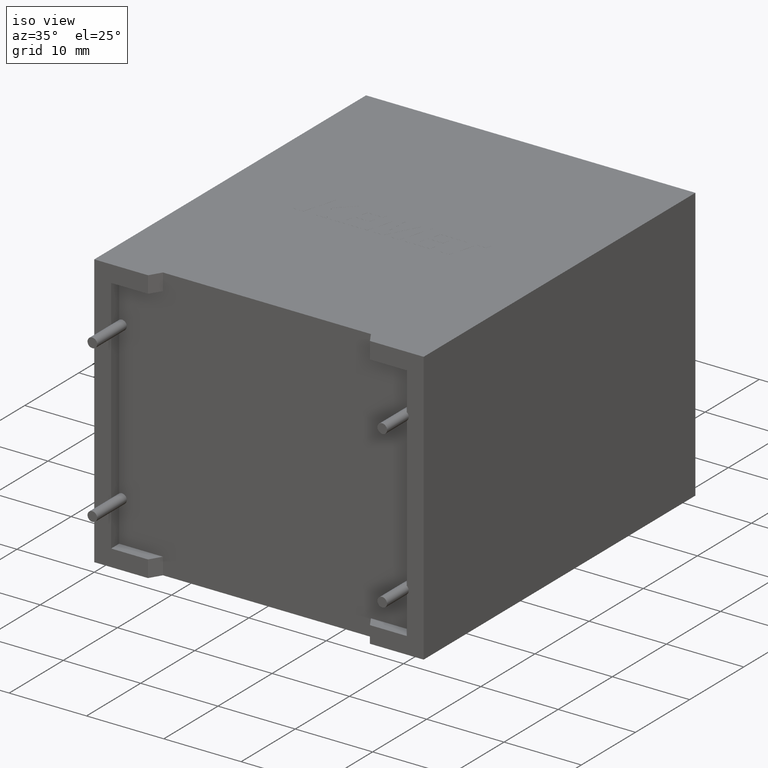
[diagram: clean part render]
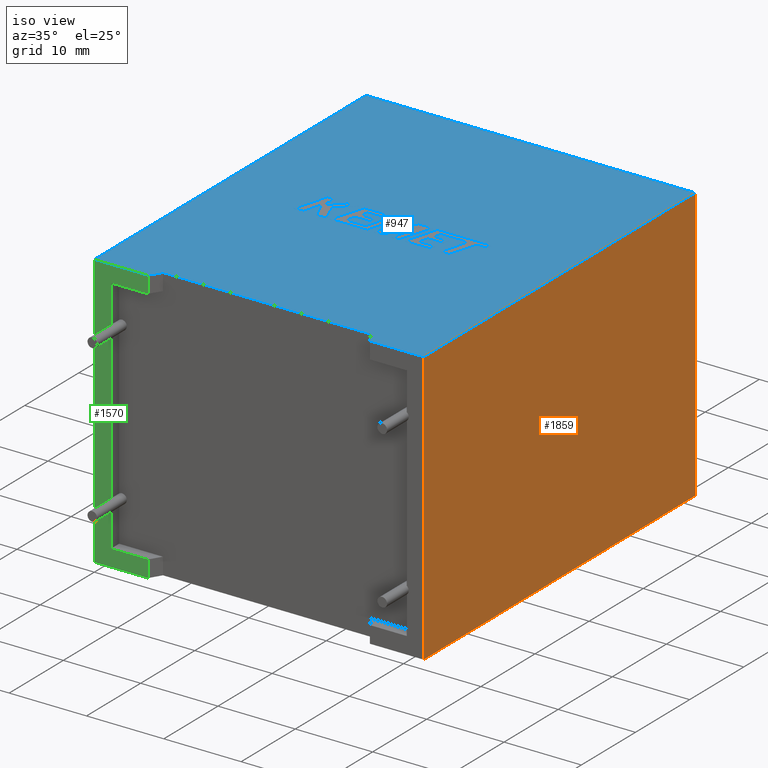
[diagram: same view with three faces highlighted in distinct colors, each labeled with its STEP entity id]
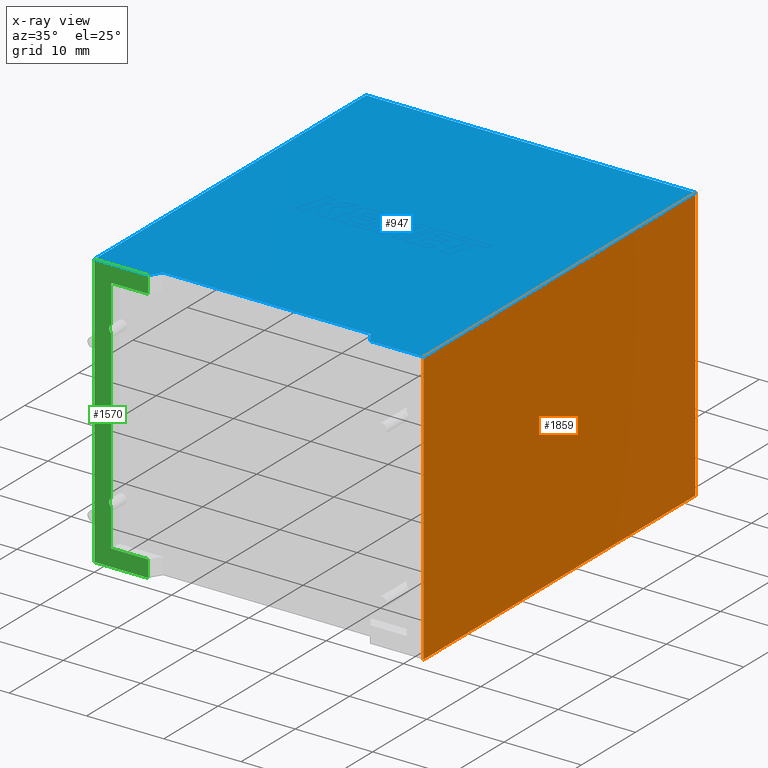
[diagram: x-ray of the same camera — body ghosted, the three highlighted faces saturated]
A machine part, iso view with three faces highlighted in distinct colors.
The next image is the same camera in x-ray (body ghosted, the three faces saturated) — at least one of them is partly hidden behind the body in this view.
Their STEP definitions:

[orange] entity #1859 — the highlighted planar face has unit normal (-1, 0, 0).
#1 = PLANE ( 'NONE',  #3032 ) ;
#258 = DIRECTION ( 'NONE',  ( 0.0000000000000000000, 0.0000000000000000000, 1.000000000000000000 ) ) ;
#403 = VECTOR ( 'NONE', #529, 1000.000000000000000 ) ;
#487 = VECTOR ( 'NONE', #2105, 1000.000000000000000 ) ;
#529 = DIRECTION ( 'NONE',  ( -0.0000000000000000000, -0.0000000000000000000, -1.000000000000000000 ) ) ;
#542 = CARTESIAN_POINT ( 'NONE',  ( 42.60000000000000100, 0.0000000000000000000, 35.39999999999999900 ) ) ;
#545 = DIRECTION ( 'NONE',  ( 0.0000000000000000000, 1.000000000000000000, 0.0000000000000000000 ) ) ;
#574 = VECTOR ( 'NONE', #3084, 1000.000000000000000 ) ;
#652 = LINE ( 'NONE', #542, #487 ) ;
#1104 = ORIENTED_EDGE ( 'NONE', *, *, #2846, .T. ) ;
#1154 = ORIENTED_EDGE ( 'NONE', *, *, #3100, .T. ) ;
#1281 = VERTEX_POINT ( 'NONE', #3398 ) ;
#1550 = CARTESIAN_POINT ( 'NONE',  ( 42.60000000000000100, 50.20000000000000300, 0.0000000000000000000 ) ) ;
#1556 = EDGE_CURVE ( 'NONE', #2790, #2770, #2204, .T. ) ;
#1852 = DIRECTION ( 'NONE',  ( -1.000000000000000000, 0.0000000000000000000, 0.0000000000000000000 ) ) ;
#1859 = ADVANCED_FACE ( 'NONE', ( #3365 ), #1, .F. ) ;
#2003 = CARTESIAN_POINT ( 'NONE',  ( 42.60000000000000100, 0.0000000000000000000, 0.0000000000000000000 ) ) ;
#2013 = CARTESIAN_POINT ( 'NONE',  ( 42.60000000000000100, 0.0000000000000000000, 35.39999999999999900 ) ) ;
#2105 = DIRECTION ( 'NONE',  ( -0.0000000000000000000, -0.0000000000000000000, -1.000000000000000000 ) ) ;
#2190 = ORIENTED_EDGE ( 'NONE', *, *, #3105, .F. ) ;
#2204 = LINE ( 'NONE', #2937, #2618 ) ;
#2282 = ORIENTED_EDGE ( 'NONE', *, *, #1556, .F. ) ;
#2357 = CARTESIAN_POINT ( 'NONE',  ( 42.60000000000000100, 0.0000000000000000000, 35.39999999999999900 ) ) ;
#2618 = VECTOR ( 'NONE', #545, 1000.000000000000000 ) ;
#2719 = EDGE_LOOP ( 'NONE', ( #1104, #2190, #2282, #1154 ) ) ;
#2770 = VERTEX_POINT ( 'NONE', #2811 ) ;
#2790 = VERTEX_POINT ( 'NONE', #2013 ) ;
#2811 = CARTESIAN_POINT ( 'NONE',  ( 42.60000000000000100, 50.20000000000000300, 35.39999999999999900 ) ) ;
#2846 = EDGE_CURVE ( 'NONE', #1281, #2933, #2851, .T. ) ;
#2851 = LINE ( 'NONE', #2003, #574 ) ;
#2933 = VERTEX_POINT ( 'NONE', #1550 ) ;
#2937 = CARTESIAN_POINT ( 'NONE',  ( 42.60000000000000100, 0.0000000000000000000, 35.39999999999999900 ) ) ;
#3032 = AXIS2_PLACEMENT_3D ( 'NONE', #2357, #1852, #258 ) ;
#3084 = DIRECTION ( 'NONE',  ( 0.0000000000000000000, 1.000000000000000000, 0.0000000000000000000 ) ) ;
#3100 = EDGE_CURVE ( 'NONE', #2790, #1281, #652, .T. ) ;
#3105 = EDGE_CURVE ( 'NONE', #2770, #2933, #3390, .T. ) ;
#3186 = CARTESIAN_POINT ( 'NONE',  ( 42.60000000000000100, 50.20000000000000300, 35.39999999999999900 ) ) ;
#3365 = FACE_OUTER_BOUND ( 'NONE', #2719, .T. ) ;
#3390 = LINE ( 'NONE', #3186, #403 ) ;
#3398 = CARTESIAN_POINT ( 'NONE',  ( 42.60000000000000100, 0.0000000000000000000, 0.0000000000000000000 ) ) ;

[blue] entity #947 — the highlighted planar face has unit normal (0, 0, -1).
#9 = EDGE_CURVE ( 'NONE', #954, #2790, #562, .T. ) ;
#23 = CARTESIAN_POINT ( 'NONE',  ( 21.30000000000000100, 1.475880000000005600, 35.39999999999999900 ) ) ;
#73 = ORIENTED_EDGE ( 'NONE', *, *, #914, .F. ) ;
#144 = CARTESIAN_POINT ( 'NONE',  ( 34.74999999999999300, 1.475880000000003900, 35.39999999999999900 ) ) ;
#545 = DIRECTION ( 'NONE',  ( 0.0000000000000000000, 1.000000000000000000, 0.0000000000000000000 ) ) ;
#562 = LINE ( 'NONE', #2293, #2757 ) ;
#638 = LINE ( 'NONE', #967, #2005 ) ;
#662 = EDGE_CURVE ( 'NONE', #2441, #954, #638, .T. ) ;
#729 = EDGE_CURVE ( 'NONE', #3039, #2987, #3414, .T. ) ;
#857 = FACE_OUTER_BOUND ( 'NONE', #2443, .T. ) ;
#859 = CARTESIAN_POINT ( 'NONE',  ( 0.0000000000000000000, 0.0000000000000000000, 35.39999999999999900 ) ) ;
#884 = PLANE ( 'NONE',  #2922 ) ;
#901 = VECTOR ( 'NONE', #1302, 999.9999999999998900 ) ;
#914 = EDGE_CURVE ( 'NONE', #2441, #3039, #1715, .T. ) ;
#947 = ADVANCED_FACE ( 'NONE', ( #857 ), #884, .F. ) ;
#954 = VERTEX_POINT ( 'NONE', #1162 ) ;
#957 = VECTOR ( 'NONE', #2531, 1000.000000000000000 ) ;
#967 = CARTESIAN_POINT ( 'NONE',  ( 34.74999999999999300, 1.475880000000003900, 35.39999999999999900 ) ) ;
#972 = VERTEX_POINT ( 'NONE', #859 ) ;
#1097 = VECTOR ( 'NONE', #1102, 1000.000000000000000 ) ;
#1102 = DIRECTION ( 'NONE',  ( -1.000000000000000000, -1.289757231209522100E-016, 0.0000000000000000000 ) ) ;
#1162 = CARTESIAN_POINT ( 'NONE',  ( 35.64999999999999900, 1.702259050814820900E-015, 35.39999999999999900 ) ) ;
#1213 = CARTESIAN_POINT ( 'NONE',  ( 0.0000000000000000000, 0.0000000000000000000, 35.39999999999999900 ) ) ;
#1302 = DIRECTION ( 'NONE',  ( -0.5206382799083093500, -0.8537773606123069100, 0.0000000000000000000 ) ) ;
#1418 = ORIENTED_EDGE ( 'NONE', *, *, #1556, .T. ) ;
#1423 = VECTOR ( 'NONE', #3441, 1000.000000000000000 ) ;
#1431 = EDGE_CURVE ( 'NONE', #972, #2987, #2404, .T. ) ;
#1556 = EDGE_CURVE ( 'NONE', #2790, #2770, #2204, .T. ) ;
#1715 = LINE ( 'NONE', #23, #1097 ) ;
#1732 = LINE ( 'NONE', #1213, #957 ) ;
#1765 = EDGE_CURVE ( 'NONE', #2770, #2065, #1869, .T. ) ;
#1794 = CARTESIAN_POINT ( 'NONE',  ( 6.950000000000000200, 1.702259050814820900E-015, 35.39999999999999900 ) ) ;
#1816 = CARTESIAN_POINT ( 'NONE',  ( 0.0000000000000000000, 0.0000000000000000000, 35.39999999999999900 ) ) ;
#1869 = LINE ( 'NONE', #2616, #2039 ) ;
#2005 = VECTOR ( 'NONE', #2573, 999.9999999999998900 ) ;
#2013 = CARTESIAN_POINT ( 'NONE',  ( 42.60000000000000100, 0.0000000000000000000, 35.39999999999999900 ) ) ;
#2039 = VECTOR ( 'NONE', #2882, 1000.000000000000000 ) ;
#2065 = VERTEX_POINT ( 'NONE', #2959 ) ;
#2090 = ORIENTED_EDGE ( 'NONE', *, *, #1431, .T. ) ;
#2172 = CARTESIAN_POINT ( 'NONE',  ( 0.0000000000000000000, 0.0000000000000000000, 35.39999999999999900 ) ) ;
#2204 = LINE ( 'NONE', #2937, #2618 ) ;
#2219 = ORIENTED_EDGE ( 'NONE', *, *, #1765, .T. ) ;
#2293 = CARTESIAN_POINT ( 'NONE',  ( 0.0000000000000000000, 0.0000000000000000000, 35.39999999999999900 ) ) ;
#2346 = CARTESIAN_POINT ( 'NONE',  ( 7.850000000000001400, 1.475880000000003900, 35.39999999999999900 ) ) ;
#2372 = CARTESIAN_POINT ( 'NONE',  ( 7.850000000000001400, 1.475880000000003900, 35.39999999999999900 ) ) ;
#2404 = LINE ( 'NONE', #1816, #1423 ) ;
#2436 = DIRECTION ( 'NONE',  ( -1.000000000000000000, 0.0000000000000000000, -0.0000000000000000000 ) ) ;
#2441 = VERTEX_POINT ( 'NONE', #144 ) ;
#2443 = EDGE_LOOP ( 'NONE', ( #73, #2809, #2721, #1418, #2219, #2590, #2090, #3392 ) ) ;
#2531 = DIRECTION ( 'NONE',  ( -0.0000000000000000000, -1.000000000000000000, -0.0000000000000000000 ) ) ;
#2573 = DIRECTION ( 'NONE',  ( 0.5206382799083093500, -0.8537773606123069100, 0.0000000000000000000 ) ) ;
#2590 = ORIENTED_EDGE ( 'NONE', *, *, #2874, .T. ) ;
#2616 = CARTESIAN_POINT ( 'NONE',  ( 0.0000000000000000000, 50.20000000000000300, 35.39999999999999900 ) ) ;
#2618 = VECTOR ( 'NONE', #545, 1000.000000000000000 ) ;
#2721 = ORIENTED_EDGE ( 'NONE', *, *, #9, .T. ) ;
#2757 = VECTOR ( 'NONE', #3062, 1000.000000000000000 ) ;
#2770 = VERTEX_POINT ( 'NONE', #2811 ) ;
#2790 = VERTEX_POINT ( 'NONE', #2013 ) ;
#2809 = ORIENTED_EDGE ( 'NONE', *, *, #662, .T. ) ;
#2811 = CARTESIAN_POINT ( 'NONE',  ( 42.60000000000000100, 50.20000000000000300, 35.39999999999999900 ) ) ;
#2874 = EDGE_CURVE ( 'NONE', #2065, #972, #1732, .T. ) ;
#2882 = DIRECTION ( 'NONE',  ( -1.000000000000000000, -0.0000000000000000000, -0.0000000000000000000 ) ) ;
#2922 = AXIS2_PLACEMENT_3D ( 'NONE', #2172, #3274, #2436 ) ;
#2937 = CARTESIAN_POINT ( 'NONE',  ( 42.60000000000000100, 0.0000000000000000000, 35.39999999999999900 ) ) ;
#2959 = CARTESIAN_POINT ( 'NONE',  ( 0.0000000000000000000, 50.20000000000000300, 35.39999999999999900 ) ) ;
#2987 = VERTEX_POINT ( 'NONE', #1794 ) ;
#3039 = VERTEX_POINT ( 'NONE', #2372 ) ;
#3062 = DIRECTION ( 'NONE',  ( 1.000000000000000000, 0.0000000000000000000, 0.0000000000000000000 ) ) ;
#3274 = DIRECTION ( 'NONE',  ( 0.0000000000000000000, 0.0000000000000000000, -1.000000000000000000 ) ) ;
#3392 = ORIENTED_EDGE ( 'NONE', *, *, #729, .F. ) ;
#3414 = LINE ( 'NONE', #2346, #901 ) ;
#3441 = DIRECTION ( 'NONE',  ( 1.000000000000000000, 0.0000000000000000000, 0.0000000000000000000 ) ) ;

[green] entity #1570 — the highlighted planar face has unit normal (0, 1, 0).
#138 = DIRECTION ( 'NONE',  ( -0.0000000000000000000, -0.0000000000000000000, 1.000000000000000000 ) ) ;
#163 = ORIENTED_EDGE ( 'NONE', *, *, #2258, .T. ) ;
#178 = DIRECTION ( 'NONE',  ( -1.000000000000000000, 0.0000000000000000000, 0.0000000000000000000 ) ) ;
#226 = ORIENTED_EDGE ( 'NONE', *, *, #2397, .F. ) ;
#298 = VECTOR ( 'NONE', #1045, 1000.000000000000000 ) ;
#353 = AXIS2_PLACEMENT_3D ( 'NONE', #3197, #2990, #2481 ) ;
#420 = CARTESIAN_POINT ( 'NONE',  ( 2.176037999999999700, 0.0000000000000000000, 7.049223180891926800 ) ) ;
#492 = DIRECTION ( 'NONE',  ( -0.0000000000000000000, -1.000000000000000000, -0.0000000000000000000 ) ) ;
#594 = VECTOR ( 'NONE', #138, 1000.000000000000000 ) ;
#600 = CARTESIAN_POINT ( 'NONE',  ( 6.950000000000000200, 1.702259050814820900E-015, 2.176037999999999700 ) ) ;
#616 = LINE ( 'NONE', #3305, #2893 ) ;
#625 = DIRECTION ( 'NONE',  ( 0.0000000000000000000, 0.0000000000000000000, -1.000000000000000000 ) ) ;
#649 = CARTESIAN_POINT ( 'NONE',  ( 6.950000000000000200, 1.702259050814820900E-015, 0.0000000000000000000 ) ) ;
#721 = CARTESIAN_POINT ( 'NONE',  ( 0.0000000000000000000, 0.0000000000000000000, 0.0000000000000000000 ) ) ;
#735 = VERTEX_POINT ( 'NONE', #2852 ) ;
#781 = LINE ( 'NONE', #2239, #2924 ) ;
#797 = DIRECTION ( 'NONE',  ( 1.000000000000000000, 0.0000000000000000000, 0.0000000000000000000 ) ) ;
#859 = CARTESIAN_POINT ( 'NONE',  ( 0.0000000000000000000, 0.0000000000000000000, 35.39999999999999900 ) ) ;
#874 = CIRCLE ( 'NONE', #2892, 0.6250000000000005600 ) ;
#912 = ORIENTED_EDGE ( 'NONE', *, *, #1803, .F. ) ;
#972 = VERTEX_POINT ( 'NONE', #859 ) ;
#1036 = EDGE_CURVE ( 'NONE', #972, #2823, #1176, .T. ) ;
#1045 = DIRECTION ( 'NONE',  ( 0.0000000000000000000, 0.0000000000000000000, -1.000000000000000000 ) ) ;
#1049 = CARTESIAN_POINT ( 'NONE',  ( 6.950000000000000200, 1.702259050814820900E-015, 0.0000000000000000000 ) ) ;
#1067 = CARTESIAN_POINT ( 'NONE',  ( 2.176037999999999700, 0.0000000000000000000, 2.176037999999999700 ) ) ;
#1147 = VERTEX_POINT ( 'NONE', #420 ) ;
#1167 = EDGE_CURVE ( 'NONE', #3266, #2603, #2954, .T. ) ;
#1176 = LINE ( 'NONE', #1951, #2833 ) ;
#1198 = DIRECTION ( 'NONE',  ( 0.0000000000000000000, 1.000000000000000000, 0.0000000000000000000 ) ) ;
#1312 = DIRECTION ( 'NONE',  ( -0.0000000000000000000, -0.0000000000000000000, 1.000000000000000000 ) ) ;
#1420 = VECTOR ( 'NONE', #625, 1000.000000000000000 ) ;
#1423 = VECTOR ( 'NONE', #3441, 1000.000000000000000 ) ;
#1428 = EDGE_CURVE ( 'NONE', #2517, #1467, #2294, .T. ) ;
#1431 = EDGE_CURVE ( 'NONE', #972, #2987, #2404, .T. ) ;
#1467 = VERTEX_POINT ( 'NONE', #2118 ) ;
#1475 = ORIENTED_EDGE ( 'NONE', *, *, #3410, .F. ) ;
#1484 = VECTOR ( 'NONE', #178, 1000.000000000000000 ) ;
#1570 = ADVANCED_FACE ( 'NONE', ( #1665 ), #1625, .F. ) ;
#1571 = ORIENTED_EDGE ( 'NONE', *, *, #1627, .F. ) ;
#1625 = PLANE ( 'NONE',  #353 ) ;
#1627 = EDGE_CURVE ( 'NONE', #1695, #2538, #1756, .T. ) ;
#1665 = FACE_OUTER_BOUND ( 'NONE', #2184, .T. ) ;
#1695 = VERTEX_POINT ( 'NONE', #2014 ) ;
#1747 = EDGE_CURVE ( 'NONE', #2376, #2987, #3151, .T. ) ;
#1756 = LINE ( 'NONE', #3296, #1420 ) ;
#1758 = CARTESIAN_POINT ( 'NONE',  ( 40.42396200000000300, 0.0000000000000000000, 33.22396200000000000 ) ) ;
#1790 = ORIENTED_EDGE ( 'NONE', *, *, #1431, .F. ) ;
#1794 = CARTESIAN_POINT ( 'NONE',  ( 6.950000000000000200, 1.702259050814820900E-015, 35.39999999999999900 ) ) ;
#1803 = EDGE_CURVE ( 'NONE', #735, #2603, #2693, .T. ) ;
#1811 = ORIENTED_EDGE ( 'NONE', *, *, #2913, .F. ) ;
#1816 = CARTESIAN_POINT ( 'NONE',  ( 0.0000000000000000000, 0.0000000000000000000, 35.39999999999999900 ) ) ;
#1825 = CARTESIAN_POINT ( 'NONE',  ( 2.176037999999999700, 0.0000000000000000000, 33.22396200000000000 ) ) ;
#1946 = ORIENTED_EDGE ( 'NONE', *, *, #1428, .F. ) ;
#1951 = CARTESIAN_POINT ( 'NONE',  ( 0.0000000000000000000, 0.0000000000000000000, 35.39999999999999900 ) ) ;
#1952 = CARTESIAN_POINT ( 'NONE',  ( 6.950000000000000200, 1.702259050814820900E-015, 0.0000000000000000000 ) ) ;
#1953 = ORIENTED_EDGE ( 'NONE', *, *, #1036, .T. ) ;
#2014 = CARTESIAN_POINT ( 'NONE',  ( 2.176037999999999700, 0.0000000000000000000, 33.22396200000000000 ) ) ;
#2071 = VECTOR ( 'NONE', #797, 1000.000000000000000 ) ;
#2075 = CARTESIAN_POINT ( 'NONE',  ( 2.550000000000000300, 0.0000000000000000000, 27.85000000000000500 ) ) ;
#2098 = CIRCLE ( 'NONE', #3116, 0.6250000000000005600 ) ;
#2118 = CARTESIAN_POINT ( 'NONE',  ( 2.176037999999999700, 0.0000000000000000000, 8.050776819108069300 ) ) ;
#2158 = CARTESIAN_POINT ( 'NONE',  ( 2.176037999999999700, 0.0000000000000000000, 27.34922318089192900 ) ) ;
#2184 = EDGE_LOOP ( 'NONE', ( #1475, #3188, #1946, #1811, #1571, #226, #3265, #1790, #1953, #163, #3083, #912 ) ) ;
#2187 = LINE ( 'NONE', #1758, #1484 ) ;
#2239 = CARTESIAN_POINT ( 'NONE',  ( 2.176037999999999700, 0.0000000000000000000, 33.22396200000000000 ) ) ;
#2258 = EDGE_CURVE ( 'NONE', #2823, #3266, #616, .T. ) ;
#2279 = EDGE_CURVE ( 'NONE', #1147, #1467, #874, .T. ) ;
#2294 = LINE ( 'NONE', #1825, #298 ) ;
#2319 = DIRECTION ( 'NONE',  ( -2.081668171172166500E-015, 0.0000000000000000000, 1.000000000000000000 ) ) ;
#2376 = VERTEX_POINT ( 'NONE', #3332 ) ;
#2397 = EDGE_CURVE ( 'NONE', #2376, #1695, #2187, .T. ) ;
#2404 = LINE ( 'NONE', #1816, #1423 ) ;
#2408 = CARTESIAN_POINT ( 'NONE',  ( 2.176037999999999700, 0.0000000000000000000, 28.35077681910807700 ) ) ;
#2456 = DIRECTION ( 'NONE',  ( 1.000000000000000000, 0.0000000000000000000, 0.0000000000000000000 ) ) ;
#2472 = DIRECTION ( 'NONE',  ( -0.0000000000000000000, -0.0000000000000000000, -1.000000000000000000 ) ) ;
#2481 = DIRECTION ( 'NONE',  ( 0.0000000000000000000, -0.0000000000000000000, 1.000000000000000000 ) ) ;
#2499 = DIRECTION ( 'NONE',  ( 0.0000000000000000000, 0.0000000000000000000, -1.000000000000000000 ) ) ;
#2517 = VERTEX_POINT ( 'NONE', #2158 ) ;
#2530 = DIRECTION ( 'NONE',  ( 0.0000000000000000000, 0.0000000000000000000, 1.000000000000000000 ) ) ;
#2538 = VERTEX_POINT ( 'NONE', #2408 ) ;
#2543 = CARTESIAN_POINT ( 'NONE',  ( 2.550000000000000300, 0.0000000000000000000, 7.549999999999998000 ) ) ;
#2603 = VERTEX_POINT ( 'NONE', #600 ) ;
#2693 = LINE ( 'NONE', #1067, #2071 ) ;
#2823 = VERTEX_POINT ( 'NONE', #721 ) ;
#2833 = VECTOR ( 'NONE', #2472, 1000.000000000000000 ) ;
#2852 = CARTESIAN_POINT ( 'NONE',  ( 2.176037999999999700, 0.0000000000000000000, 2.176037999999999700 ) ) ;
#2892 = AXIS2_PLACEMENT_3D ( 'NONE', #2543, #1198, #2530 ) ;
#2893 = VECTOR ( 'NONE', #2456, 1000.000000000000000 ) ;
#2913 = EDGE_CURVE ( 'NONE', #2538, #2517, #2098, .T. ) ;
#2924 = VECTOR ( 'NONE', #2499, 1000.000000000000000 ) ;
#2954 = LINE ( 'NONE', #649, #594 ) ;
#2987 = VERTEX_POINT ( 'NONE', #1794 ) ;
#2990 = DIRECTION ( 'NONE',  ( 0.0000000000000000000, 1.000000000000000000, 0.0000000000000000000 ) ) ;
#3083 = ORIENTED_EDGE ( 'NONE', *, *, #1167, .T. ) ;
#3116 = AXIS2_PLACEMENT_3D ( 'NONE', #2075, #492, #2319 ) ;
#3151 = LINE ( 'NONE', #1049, #3233 ) ;
#3188 = ORIENTED_EDGE ( 'NONE', *, *, #2279, .T. ) ;
#3197 = CARTESIAN_POINT ( 'NONE',  ( 0.0000000000000000000, 0.0000000000000000000, 35.39999999999999900 ) ) ;
#3233 = VECTOR ( 'NONE', #1312, 1000.000000000000000 ) ;
#3265 = ORIENTED_EDGE ( 'NONE', *, *, #1747, .T. ) ;
#3266 = VERTEX_POINT ( 'NONE', #1952 ) ;
#3296 = CARTESIAN_POINT ( 'NONE',  ( 2.176037999999999700, 0.0000000000000000000, 33.22396200000000000 ) ) ;
#3305 = CARTESIAN_POINT ( 'NONE',  ( 0.0000000000000000000, 0.0000000000000000000, 0.0000000000000000000 ) ) ;
#3332 = CARTESIAN_POINT ( 'NONE',  ( 6.950000000000000200, 1.702259050814820900E-015, 33.22396200000000000 ) ) ;
#3410 = EDGE_CURVE ( 'NONE', #1147, #735, #781, .T. ) ;
#3441 = DIRECTION ( 'NONE',  ( 1.000000000000000000, 0.0000000000000000000, 0.0000000000000000000 ) ) ;